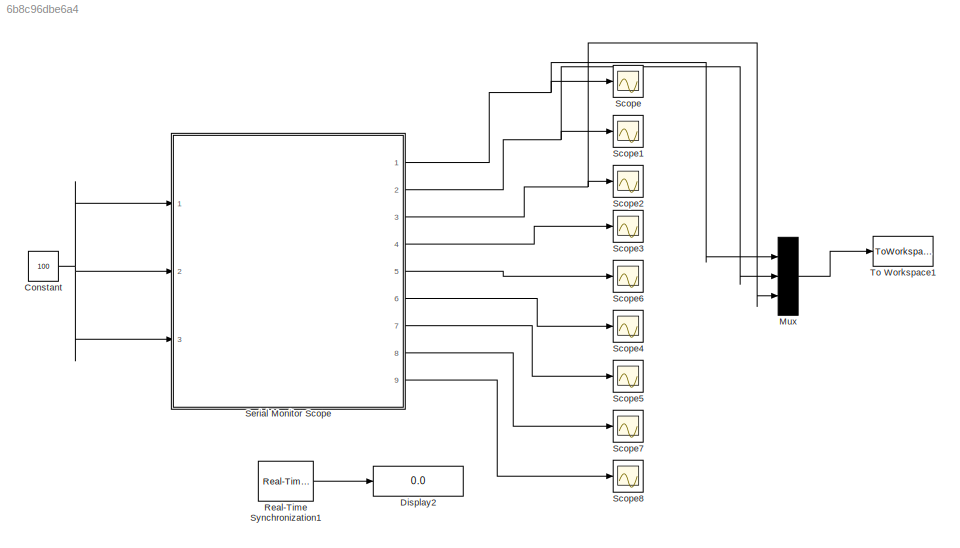
MODEL slx_6b8c96dbe6a4
KIND model
CONFIG AbsTol = auto
CONFIG EnableMultiTasking = on
CONFIG FixedStep = Tsa
CONFIG MaxStep = auto
CONFIG MinStep = auto
CONFIG RelTol = 1e-3
CONFIG SampleTimeConstraint = Unconstrained
CONFIG Solver = FixedStepDiscrete
CONFIG SolverName = FixedStepDiscrete
CONFIG StartFcn = s_2 = serial(Port1,'BaudRate',115200,'FlowControl','none','Parity','none','DataBits',8,'StopBits',1,'Timeout',2);\ns_2.InputBufferSize=1024*5; s_2.OutputBufferSize=1024*5;\ns_2.Terminator='CR';\n\nfopen(s_2);\n
CONFIG StartTime = 0.0
CONFIG StopFcn = fclose(s_2);
CONFIG StopTime = inf
BLOCK [Constant] Constant
  SampleTime = Tsa
  Value = 100
BLOCK [Display] Display2
  Decimation = 1
  Ports = [1]
BLOCK [Mux] Mux
  DisplayOption = bar
  Inputs = 3
  Ports = [3, 1]
BLOCK [Reference] Real-Time Synchronization1  REF=sldrtlib/Real-Time
Synchronization
  Ports = [0, 1]
  SourceBlock = sldrtlib/Real-Time\nSynchronization
  SourceType = Simulink Desktop Real-Time Synchronization
BLOCK [Scope] Scope
  NumInputPorts = 1
  Ports = [1]
  ScopeSpecificationString = Simulink.scopes.TimeScopeBlockCfg('CurrentConfiguration', extmgr.ConfigurationSet(extmgr.Configuration('Core','General UI',true),extmgr.Configuration('Core','Source UI',true),extmgr.Configuration('Sources','WiredSimulink',true),extmgr.Configuration('Visuals','Time Domain',true,'SerializedDisplays',{struct('MinYLimReal','138.8225','MaxYLimReal','150.2975','YLabelReal','','MinYLimMag','138.8225','Ma...<+1377ch>
BLOCK [Scope] Scope1
  NumInputPorts = 1
  Ports = [1]
  ScopeSpecificationString = Simulink.scopes.TimeScopeBlockCfg('CurrentConfiguration', extmgr.ConfigurationSet(extmgr.Configuration('Core','General UI',true),extmgr.Configuration('Core','Source UI',true),extmgr.Configuration('Sources','WiredSimulink',true,'DataLoggingVariableName','ScopeData1'),extmgr.Configuration('Visuals','Time Domain',true,'SerializedDisplays',{struct('MinYLimReal','150.00000','MaxYLimReal','350.00000','Y...<+1424ch>
BLOCK [Scope] Scope2
  NumInputPorts = 1
  Ports = [1]
  ScopeSpecificationString = Simulink.scopes.TimeScopeBlockCfg('CurrentConfiguration', extmgr.ConfigurationSet(extmgr.Configuration('Core','General UI',true),extmgr.Configuration('Core','Source UI',true),extmgr.Configuration('Sources','WiredSimulink',true,'DataLoggingVariableName','ScopeData2','DataLoggingLimitDataPoints',true,'DataLoggingSaveFormat','Array','DataLoggingDecimation','1','DataLoggingDecimateData',true),extmgr.C...<+1529ch>
BLOCK [Scope] Scope3
  NumInputPorts = 1
  Ports = [1]
  ScopeSpecificationString = C++SS(StrPVP('SaveName','ScopeData'),StrPVP('SaveName','ScopeData1'),StrPVP('SaveName','ScopeData2'),StrPVP('SaveName','ScopeData3'),StrPVP('LimitDataPoints','on'),StrPVP('DataFormat','Array'),StrPVP('Decimation','1'),StrPVP('BlockParamSampleInput','off'))
BLOCK [Scope] Scope4
  NumInputPorts = 1
  Ports = [1]
  ScopeSpecificationString = C++SS(StrPVP('SaveName','ScopeData'),StrPVP('SaveName','ScopeData1'),StrPVP('SaveName','ScopeData2'),StrPVP('SaveName','ScopeData3'),StrPVP('SaveName','ScopeData4'),StrPVP('LimitDataPoints','on'),StrPVP('DataFormat','Array'),StrPVP('Decimation','1'),StrPVP('BlockParamSampleInput','off'))
BLOCK [Scope] Scope5
  NumInputPorts = 1
  Ports = [1]
  ScopeSpecificationString = Simulink.scopes.TimeScopeBlockCfg('CurrentConfiguration', extmgr.ConfigurationSet(extmgr.Configuration('Core','General UI',true),extmgr.Configuration('Core','Source UI',true),extmgr.Configuration('Sources','WiredSimulink',true,'DataLoggingVariableName','ScopeData5'),extmgr.Configuration('Visuals','Time Domain',true,'SerializedDisplays',{struct('MinYLimReal','90.00000','MaxYLimReal','110.00000','YL...<+1391ch>
BLOCK [Scope] Scope6
  NumInputPorts = 1
  Ports = [1]
  ScopeSpecificationString = C++SS(StrPVP('SaveName','ScopeData'),StrPVP('SaveName','ScopeData1'),StrPVP('SaveName','ScopeData2'),StrPVP('SaveName','ScopeData3'),StrPVP('SaveName','ScopeData4'),StrPVP('SaveName','ScopeData6'),StrPVP('LimitDataPoints','on'),StrPVP('DataFormat','Array'),StrPVP('Decimation','1'),StrPVP('BlockParamSampleInput','off'))
BLOCK [Scope] Scope7
  NumInputPorts = 1
  Ports = [1]
  ScopeSpecificationString = Simulink.scopes.TimeScopeBlockCfg('CurrentConfiguration', extmgr.ConfigurationSet(extmgr.Configuration('Core','General UI',true),extmgr.Configuration('Core','Source UI',true),extmgr.Configuration('Sources','WiredSimulink',true,'DataLoggingVariableName','ScopeData7'),extmgr.Configuration('Visuals','Time Domain',true,'SerializedDisplays',{struct('MinYLimReal','-12.5','MaxYLimReal','112.5','YLabelRea...<+1392ch>
BLOCK [Scope] Scope8
  NumInputPorts = 1
  Ports = [1]
  ScopeSpecificationString = Simulink.scopes.TimeScopeBlockCfg('CurrentConfiguration', extmgr.ConfigurationSet(extmgr.Configuration('Core','General UI',true),extmgr.Configuration('Core','Source UI',true),extmgr.Configuration('Sources','WiredSimulink',true,'DataLoggingVariableName','ScopeData8'),extmgr.Configuration('Visuals','Time Domain',true,'SerializedDisplays',{struct('MinYLimReal','-12.5','MaxYLimReal','112.5','YLabelRea...<+1367ch>
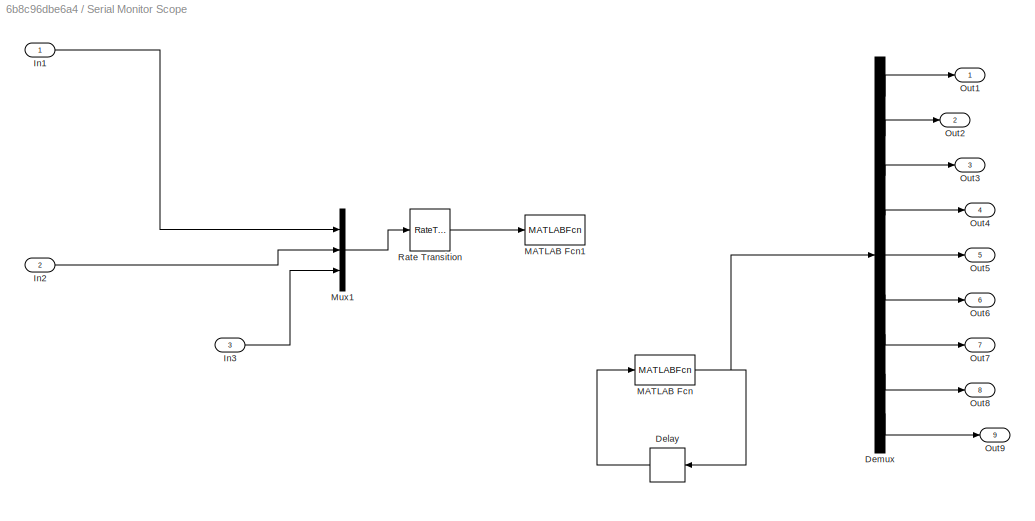
BLOCK [SubSystem] Serial Monitor Scope
  Description = Serial Monitor Scope
  Ports = [3, 9]
  RequestExecContextInheritance = off
  Variant = off
BLOCK [Delay] Serial Monitor Scope/Delay
  DelayLength = 1
  InitialCondition = 0
  InputPortMap = u0
  Ports = [1, 1]
  SampleTime = Tsa
BLOCK [Demux] Serial Monitor Scope/Demux
  DisplayOption = bar
  Outputs = 9
  Ports = [1, 9]
BLOCK [Inport] Serial Monitor Scope/In1
  IconDisplay = Port number
BLOCK [Inport] Serial Monitor Scope/In2
  IconDisplay = Port number
  Port = 2
BLOCK [Inport] Serial Monitor Scope/In3
  IconDisplay = Port number
  Port = 3
BLOCK [MATLABFcn] Serial Monitor Scope/MATLAB Fcn
  MATLABFcn = serialMonitorRead(u,s_2)
  OutputDimensions = 9
  Ports = [1, 1]
BLOCK [MATLABFcn] Serial Monitor Scope/MATLAB Fcn1
  MATLABFcn = serialMonitorWrite(u,s_2)
  OutputDimensions = 0
  Ports = [1]
BLOCK [Mux] Serial Monitor Scope/Mux1
  DisplayOption = bar
  Inputs = 3
  Ports = [3, 1]
BLOCK [Outport] Serial Monitor Scope/Out1
  IconDisplay = Port number
BLOCK [Outport] Serial Monitor Scope/Out2
  IconDisplay = Port number
  Port = 2
BLOCK [Outport] Serial Monitor Scope/Out3
  IconDisplay = Port number
  Port = 3
BLOCK [Outport] Serial Monitor Scope/Out4
  IconDisplay = Port number
  Port = 4
BLOCK [Outport] Serial Monitor Scope/Out5
  IconDisplay = Port number
  Port = 5
BLOCK [Outport] Serial Monitor Scope/Out6
  IconDisplay = Port number
  Port = 6
BLOCK [Outport] Serial Monitor Scope/Out7
  IconDisplay = Port number
  Port = 7
BLOCK [Outport] Serial Monitor Scope/Out8
  IconDisplay = Port number
  Port = 8
BLOCK [Outport] Serial Monitor Scope/Out9
  IconDisplay = Port number
  Port = 9
BLOCK [RateTransition] Serial Monitor Scope/Rate Transition
  Deterministic = off
  OutPortSampleTime = Tsa*TCommand
BLOCK [ToWorkspace] To Workspace1
  FixptAsFi = on
  MaxDataPoints = inf
  Ports = [1]
  SampleTime = -1
  Save2DSignal = 3-D array (concatenate along third dimension)
  SaveFormat = Timeseries
  VariableName = simout1
NET Constant:1 -> Serial Monitor Scope:1, Serial Monitor Scope:2, Serial Monitor Scope:3
LINE Mux:1 -> To Workspace1:1
LINE Real-Time Synchronization1:1 -> Display2:1
LINE Serial Monitor Scope/Delay:1 -> Serial Monitor Scope/MATLAB Fcn:1
LINE Serial Monitor Scope/Demux:1 -> Serial Monitor Scope/Out1:1
LINE Serial Monitor Scope/Demux:2 -> Serial Monitor Scope/Out2:1
LINE Serial Monitor Scope/Demux:3 -> Serial Monitor Scope/Out3:1
LINE Serial Monitor Scope/Demux:4 -> Serial Monitor Scope/Out4:1
LINE Serial Monitor Scope/Demux:5 -> Serial Monitor Scope/Out5:1
LINE Serial Monitor Scope/Demux:6 -> Serial Monitor Scope/Out6:1
LINE Serial Monitor Scope/Demux:7 -> Serial Monitor Scope/Out7:1
LINE Serial Monitor Scope/Demux:8 -> Serial Monitor Scope/Out8:1
LINE Serial Monitor Scope/Demux:9 -> Serial Monitor Scope/Out9:1
LINE Serial Monitor Scope/In1:1 -> Serial Monitor Scope/Mux1:1
LINE Serial Monitor Scope/In2:1 -> Serial Monitor Scope/Mux1:2
LINE Serial Monitor Scope/In3:1 -> Serial Monitor Scope/Mux1:3
NET Serial Monitor Scope/MATLAB Fcn:1 -> Serial Monitor Scope/Delay:1, Serial Monitor Scope/Demux:1
LINE Serial Monitor Scope/Mux1:1 -> Serial Monitor Scope/Rate Transition:1
LINE Serial Monitor Scope/Rate Transition:1 -> Serial Monitor Scope/MATLAB Fcn1:1
NET Serial Monitor Scope:1 -> Mux:1, Scope:1
NET Serial Monitor Scope:2 -> Mux:2, Scope1:1
NET Serial Monitor Scope:3 -> Mux:3, Scope2:1
LINE Serial Monitor Scope:4 -> Scope3:1
LINE Serial Monitor Scope:5 -> Scope6:1
LINE Serial Monitor Scope:6 -> Scope4:1
LINE Serial Monitor Scope:7 -> Scope5:1
LINE Serial Monitor Scope:8 -> Scope7:1
LINE Serial Monitor Scope:9 -> Scope8:1
note: NET lines group one-source signal fan-out (src -> all destinations, sorted); 1:1 wires keep LINE
